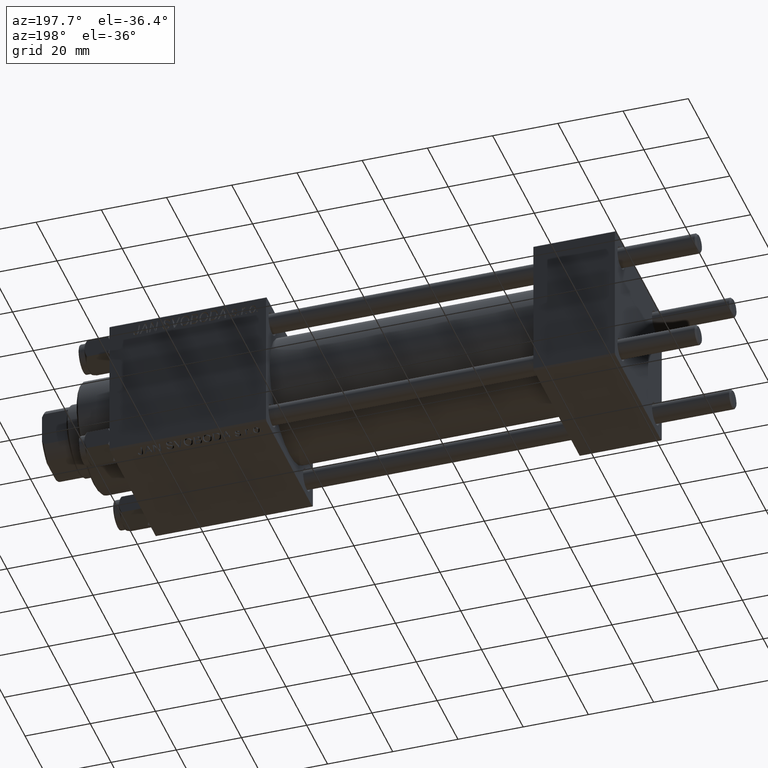
[diagram: clean part render]
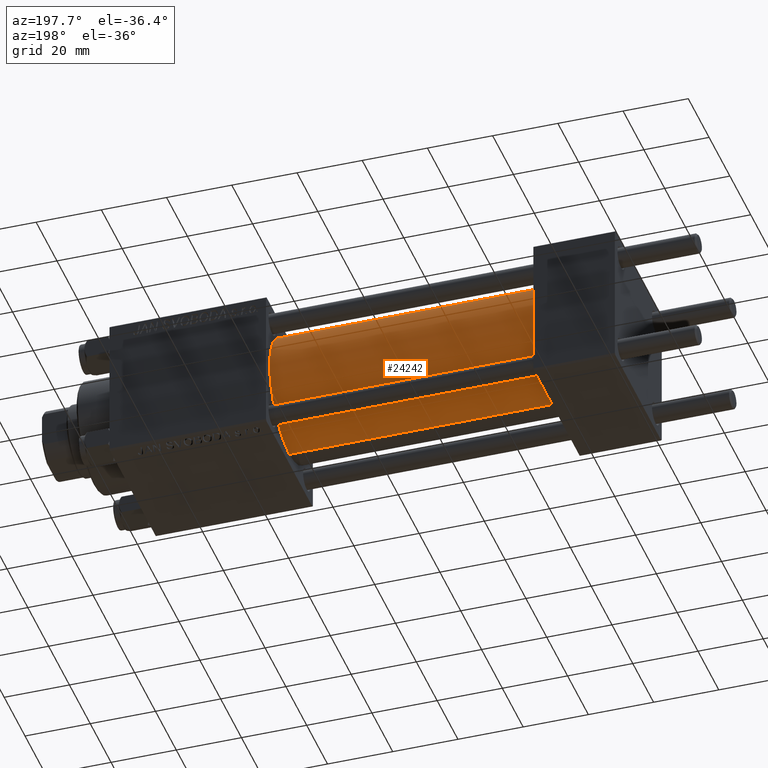
[diagram: same view with one face highlighted and labeled with its STEP entity id]
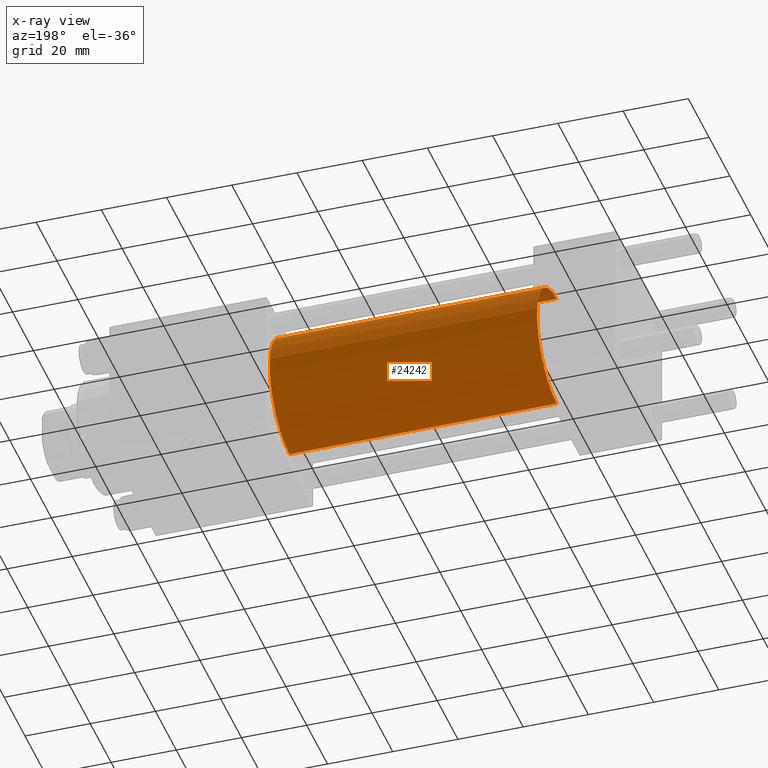
[diagram: x-ray of the same camera — body ghosted, the highlighted face saturated]
A machine part, auxiliary view. The second image highlights one B-rep face of the part: STEP entity #24242.
The next image is the same camera in x-ray: the body ghosted, the highlighted face saturated — about 0% of this face is hidden behind the body in this view.
In plain terms, the highlighted cylindrical surface (partial cylindrical patch) has radius 19 mm, axis along (-1, -0, -0).
Its self-contained STEP definition (entity closure, byte-faithful):
#419 = DIRECTION ( 'NONE',  ( 0.000000000000000000, 0.000000000000000000, 1.000000000000000000 ) ) ;
#1550 = EDGE_CURVE ( 'NONE', #36547, #23351, #41721, .T. ) ;
#1817 = VERTEX_POINT ( 'NONE', #4764 ) ;
#2574 = CIRCLE ( 'NONE', #41229, 19.00000000000000000 ) ;
#2746 = EDGE_CURVE ( 'NONE', #23087, #23351, #2574, .T. ) ;
#3559 = CARTESIAN_POINT ( 'NONE',  ( 24.99999999999999289, 0.000000000000000000, 19.00000000000000000 ) ) ;
#3629 = CYLINDRICAL_SURFACE ( 'NONE', #26439, 19.00000000000000000 ) ;
#3982 = CARTESIAN_POINT ( 'NONE',  ( 107.0000000000000142, 0.000000000000000000, 0.000000000000000000 ) ) ;
#4764 = CARTESIAN_POINT ( 'NONE',  ( 107.0000000000000142, 2.326828918379970970E-15, -19.00000000000000000 ) ) ;
#7265 = DIRECTION ( 'NONE',  ( 1.000000000000000000, 0.000000000000000000, 0.000000000000000000 ) ) ;
#7413 = FACE_OUTER_BOUND ( 'NONE', #26112, .T. ) ;
#10245 = CIRCLE ( 'NONE', #11031, 19.00000000000000000 ) ;
#10950 = CARTESIAN_POINT ( 'NONE',  ( 107.0000000000000142, 0.000000000000000000, 0.000000000000000000 ) ) ;
#11031 = AXIS2_PLACEMENT_3D ( 'NONE', #3982, #7265, #34749 ) ;
#11688 = VECTOR ( 'NONE', #34703, 1000.000000000000000 ) ;
#12017 = LINE ( 'NONE', #30415, #11688 ) ;
#12672 = ORIENTED_EDGE ( 'NONE', *, *, #1550, .F. ) ;
#13935 = EDGE_CURVE ( 'NONE', #1817, #23087, #12017, .T. ) ;
#15072 = DIRECTION ( 'NONE',  ( 1.000000000000000000, -0.000000000000000000, 0.000000000000000000 ) ) ;
#18088 = EDGE_CURVE ( 'NONE', #1817, #36547, #10245, .T. ) ;
#20063 = ORIENTED_EDGE ( 'NONE', *, *, #18088, .F. ) ;
#20810 = ORIENTED_EDGE ( 'NONE', *, *, #13935, .T. ) ;
#21082 = CARTESIAN_POINT ( 'NONE',  ( 107.0000000000000142, 0.000000000000000000, 19.00000000000000000 ) ) ;
#23087 = VERTEX_POINT ( 'NONE', #46980 ) ;
#23351 = VERTEX_POINT ( 'NONE', #3559 ) ;
#24242 = ADVANCED_FACE ( 'NONE', ( #7413 ), #3629, .T. ) ;
#25518 = ORIENTED_EDGE ( 'NONE', *, *, #2746, .T. ) ;
#26112 = EDGE_LOOP ( 'NONE', ( #20063, #20810, #25518, #12672 ) ) ;
#26439 = AXIS2_PLACEMENT_3D ( 'NONE', #10950, #33165, #48536 ) ;
#30415 = CARTESIAN_POINT ( 'NONE',  ( 107.0000000000000142, 2.326828918379970970E-15, -19.00000000000000000 ) ) ;
#33165 = DIRECTION ( 'NONE',  ( -1.000000000000000000, -0.000000000000000000, -0.000000000000000000 ) ) ;
#34703 = DIRECTION ( 'NONE',  ( -1.000000000000000000, -0.000000000000000000, -0.000000000000000000 ) ) ;
#34749 = DIRECTION ( 'NONE',  ( 0.000000000000000000, 0.000000000000000000, -1.000000000000000000 ) ) ;
#34918 = CARTESIAN_POINT ( 'NONE',  ( 107.0000000000000142, 0.000000000000000000, 19.00000000000000000 ) ) ;
#36547 = VERTEX_POINT ( 'NONE', #21082 ) ;
#38797 = VECTOR ( 'NONE', #47251, 1000.000000000000000 ) ;
#41229 = AXIS2_PLACEMENT_3D ( 'NONE', #49347, #15072, #419 ) ;
#41721 = LINE ( 'NONE', #34918, #38797 ) ;
#46980 = CARTESIAN_POINT ( 'NONE',  ( 24.99999999999999289, 2.326828918379970970E-15, -19.00000000000000000 ) ) ;
#47251 = DIRECTION ( 'NONE',  ( -1.000000000000000000, -0.000000000000000000, -0.000000000000000000 ) ) ;
#48536 = DIRECTION ( 'NONE',  ( 0.000000000000000000, 0.000000000000000000, 1.000000000000000000 ) ) ;
#49347 = CARTESIAN_POINT ( 'NONE',  ( 24.99999999999999289, 0.000000000000000000, 0.000000000000000000 ) ) ;